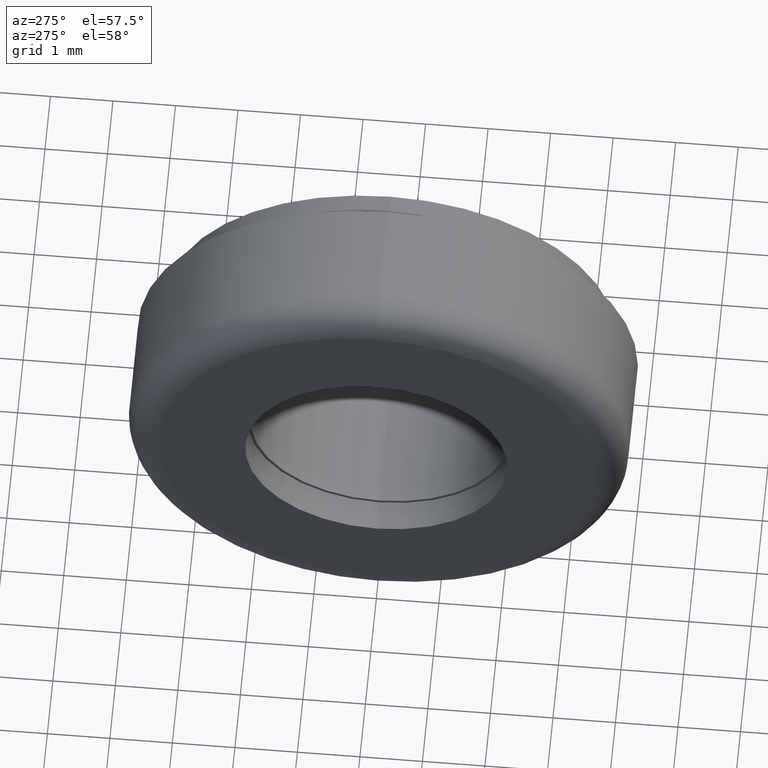
[diagram: clean part render]
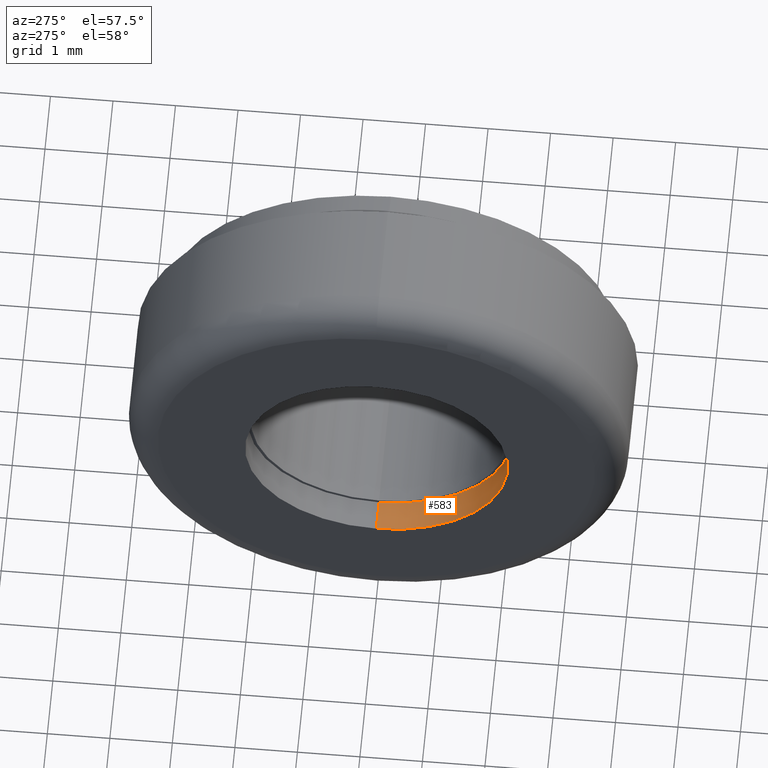
[diagram: same view with one face highlighted and labeled with its STEP entity id]
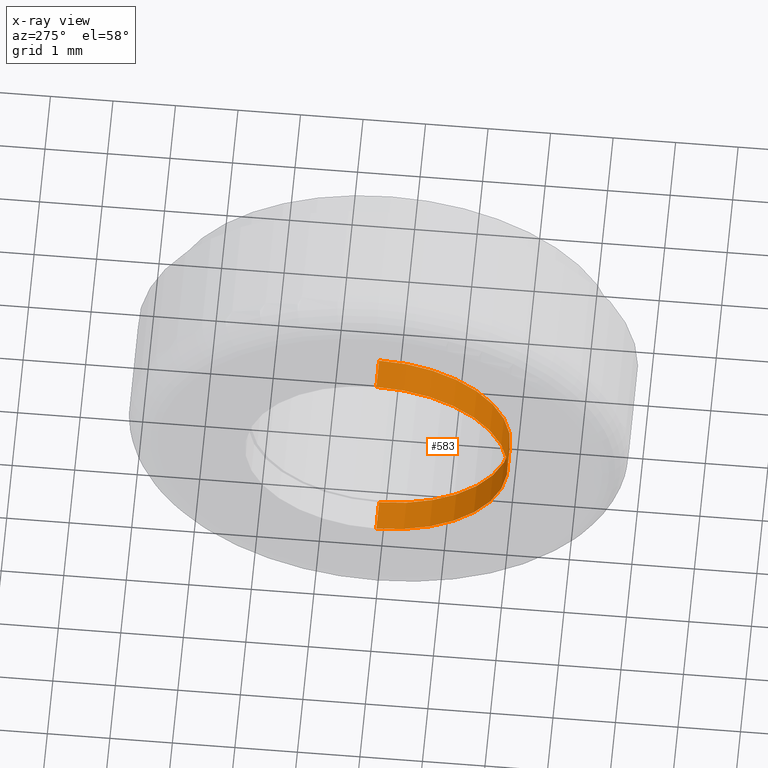
[diagram: x-ray of the same camera — body ghosted, the highlighted face saturated]
A machine part, auxiliary view. The second image highlights one B-rep face of the part: STEP entity #583.
The next image is the same camera in x-ray: the body ghosted, the highlighted face saturated — about 0% of this face is hidden behind the body in this view.
In plain terms, the highlighted cylindrical surface (partial cylindrical patch) has radius 2.1 mm, axis along (-1, 0, 0).
Its self-contained STEP definition (entity closure, byte-faithful):
#5 = CARTESIAN_POINT ( 'NONE',  ( 2.100000000000000100, 0.0000000000000000000, 0.0000000000000000000 ) ) ;
#61 = LINE ( 'NONE', #217, #206 ) ;
#111 = CIRCLE ( 'NONE', #607, 2.100000000000000100 ) ;
#147 = CYLINDRICAL_SURFACE ( 'NONE', #355, 2.100000000000000100 ) ;
#158 = EDGE_CURVE ( 'NONE', #381, #186, #346, .T. ) ;
#162 = FACE_OUTER_BOUND ( 'NONE', #698, .T. ) ;
#167 = DIRECTION ( 'NONE',  ( -1.000000000000000000, 0.0000000000000000000, 0.0000000000000000000 ) ) ;
#186 = VERTEX_POINT ( 'NONE', #553 ) ;
#196 = VECTOR ( 'NONE', #450, 1000.000000000000000 ) ;
#206 = VECTOR ( 'NONE', #167, 1000.000000000000000 ) ;
#214 = CARTESIAN_POINT ( 'NONE',  ( 0.5000000000000000000, 2.571758278209442000E-016, -2.100000000000000100 ) ) ;
#217 = CARTESIAN_POINT ( 'NONE',  ( 2.100000000000000100, 0.0000000000000000000, 2.100000000000000100 ) ) ;
#227 = ORIENTED_EDGE ( 'NONE', *, *, #331, .F. ) ;
#229 = CARTESIAN_POINT ( 'NONE',  ( 0.5000000000000000000, 0.0000000000000000000, 2.100000000000000100 ) ) ;
#288 = ORIENTED_EDGE ( 'NONE', *, *, #158, .F. ) ;
#292 = DIRECTION ( 'NONE',  ( 0.0000000000000000000, 0.0000000000000000000, 1.000000000000000000 ) ) ;
#295 = VERTEX_POINT ( 'NONE', #229 ) ;
#300 = CARTESIAN_POINT ( 'NONE',  ( 0.5000000000000000000, 0.0000000000000000000, 0.0000000000000000000 ) ) ;
#331 = EDGE_CURVE ( 'NONE', #609, #295, #111, .T. ) ;
#346 = CIRCLE ( 'NONE', #531, 2.100000000000000100 ) ;
#355 = AXIS2_PLACEMENT_3D ( 'NONE', #5, #715, #292 ) ;
#381 = VERTEX_POINT ( 'NONE', #539 ) ;
#411 = DIRECTION ( 'NONE',  ( -1.000000000000000000, -0.0000000000000000000, -0.0000000000000000000 ) ) ;
#412 = ORIENTED_EDGE ( 'NONE', *, *, #486, .F. ) ;
#450 = DIRECTION ( 'NONE',  ( -1.000000000000000000, 0.0000000000000000000, 0.0000000000000000000 ) ) ;
#474 = EDGE_CURVE ( 'NONE', #609, #186, #632, .T. ) ;
#486 = EDGE_CURVE ( 'NONE', #295, #381, #61, .T. ) ;
#513 = DIRECTION ( 'NONE',  ( 0.0000000000000000000, 0.0000000000000000000, -1.000000000000000000 ) ) ;
#516 = CARTESIAN_POINT ( 'NONE',  ( 0.0000000000000000000, 0.0000000000000000000, 0.0000000000000000000 ) ) ;
#518 = ORIENTED_EDGE ( 'NONE', *, *, #474, .T. ) ;
#531 = AXIS2_PLACEMENT_3D ( 'NONE', #516, #567, #513 ) ;
#539 = CARTESIAN_POINT ( 'NONE',  ( 0.0000000000000000000, 0.0000000000000000000, 2.100000000000000100 ) ) ;
#553 = CARTESIAN_POINT ( 'NONE',  ( 0.0000000000000000000, 2.571758278209442000E-016, -2.100000000000000100 ) ) ;
#567 = DIRECTION ( 'NONE',  ( 1.000000000000000000, 0.0000000000000000000, 0.0000000000000000000 ) ) ;
#583 = ADVANCED_FACE ( 'NONE', ( #162 ), #147, .F. ) ;
#607 = AXIS2_PLACEMENT_3D ( 'NONE', #300, #411, #624 ) ;
#609 = VERTEX_POINT ( 'NONE', #214 ) ;
#624 = DIRECTION ( 'NONE',  ( 0.0000000000000000000, 0.0000000000000000000, -1.000000000000000000 ) ) ;
#632 = LINE ( 'NONE', #728, #196 ) ;
#698 = EDGE_LOOP ( 'NONE', ( #227, #518, #288, #412 ) ) ;
#715 = DIRECTION ( 'NONE',  ( -1.000000000000000000, 0.0000000000000000000, 0.0000000000000000000 ) ) ;
#728 = CARTESIAN_POINT ( 'NONE',  ( 2.100000000000000100, 2.571758278209442000E-016, -2.100000000000000100 ) ) ;